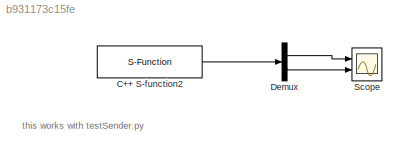
MODEL slx_b931173c15fe
KIND model
BLOCK [S-Function] C++ S-function2
  EnableBusSupport = off
  FunctionName = yarpReadVarVector_sfun
  Parameters = '/testSender', '/sim/in'
  Ports = [0, 1]
BLOCK [Demux] Demux
  DisplayOption = bar
  Outputs = 2
  Ports = [1, 2]
BLOCK [Scope] Scope
  Floating = off
  NumInputPorts = 2
  Ports = [2]
  ShowLegends = off
  YMax = 1~1
  YMin = 0~0
ANNOTATION (root): this works with testSender.py
LINE C++ S-function2:1 -> Demux:1
LINE Demux:1 -> Scope:1
LINE Demux:2 -> Scope:2
